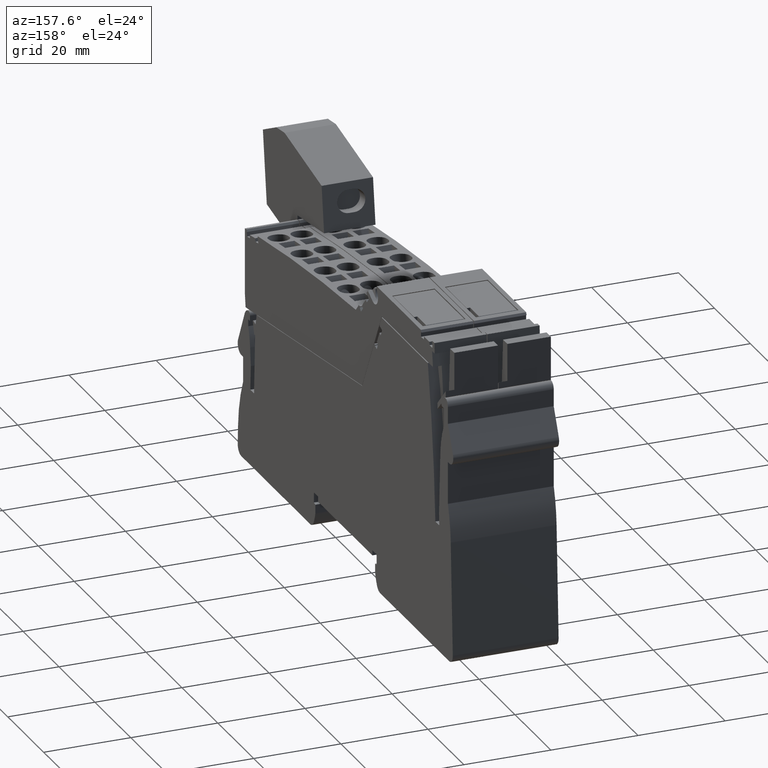
[diagram: clean part render]
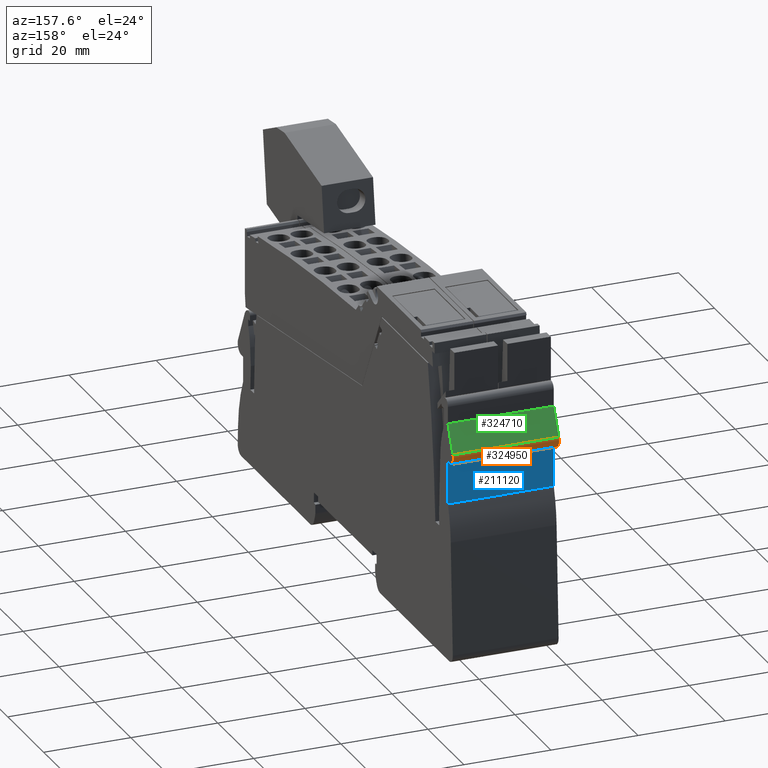
[diagram: same view with three faces highlighted in distinct colors, each labeled with its STEP entity id]
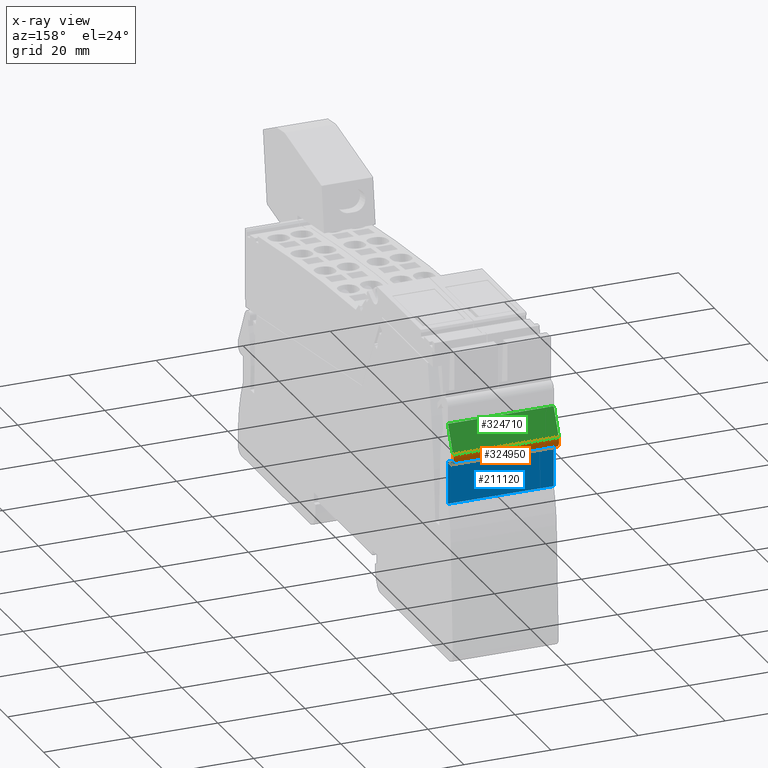
[diagram: x-ray of the same camera — body ghosted, the three highlighted faces saturated]
A machine part, auxiliary view with three faces highlighted in distinct colors.
The next image is the same camera in x-ray (body ghosted, the three faces saturated) — at least one of them is partly hidden behind the body in this view.
Their STEP definitions:

[orange] entity #324950 — the highlighted cylindrical surface (edge-blend (fillet) strip) has radius 2 mm, axis along (1, -0, 0).
#198460=CARTESIAN_POINT('',(296.541235782933,-14.1090415733122,12.15));
#198470=VERTEX_POINT('',#198460);
#198520=CARTESIAN_POINT('',(294.72862020886,-14.9542780967936,12.15));
#198530=DIRECTION('',(1.61619556307429E-58,1.53640057743941E-44,1.));
#198540=DIRECTION('',(1.,-1.05193631583234E-14,0.));
#198550=AXIS2_PLACEMENT_3D('',#198520,#198530,#198540);
#198560=CIRCLE('',#198550,2.);
#198570=CARTESIAN_POINT('',(294.72862020886,-16.9542780967936,12.15));
#198580=VERTEX_POINT('',#198570);
#198590=EDGE_CURVE('',#198580,#198470,#198560,.T.);
#204730=CARTESIAN_POINT('',(294.72862020886,-16.9542780967936,-12.15));
#204740=VERTEX_POINT('',#204730);
#204770=CARTESIAN_POINT('',(294.72862020886,-14.9542780967936,-12.15));
#204780=DIRECTION('',(1.61619556307429E-58,1.53640057743941E-44,1.));
#204790=DIRECTION('',(1.,-1.05193631583234E-14,0.));
#204800=AXIS2_PLACEMENT_3D('',#204770,#204780,#204790);
#204810=CIRCLE('',#204800,2.);
#204820=CARTESIAN_POINT('',(296.541235782933,-14.1090415733122,-12.15));
#204830=VERTEX_POINT('',#204820);
#204840=EDGE_CURVE('',#204740,#204830,#204810,.T.);
#324600=CARTESIAN_POINT('',(296.541235782933,-14.1090415733122,
-3014.28287690893));
#324610=DIRECTION('',(3.63230330722432E-59,3.45296882763315E-45,1.));
#324620=VECTOR('',#324610,1.);
#324630=LINE('',#324600,#324620);
#324640=EDGE_CURVE('',#204830,#198470,#324630,.T.);
#324790=CARTESIAN_POINT('',(294.72862020886,-14.9542780967942,
-8.32500000000002));
#324800=DIRECTION('',(3.63230330722432E-59,3.45296882763315E-45,1.));
#324810=DIRECTION('',(1.,-2.10387263166467E-14,3.63230330722432E-59));
#324820=AXIS2_PLACEMENT_3D('',#324790,#324800,#324810);
#324830=CYLINDRICAL_SURFACE('',#324820,2.);
#324840=ORIENTED_EDGE('',*,*,#204840,.T.);
#324850=CARTESIAN_POINT('',(294.72862020886,-16.9542780967936,
3.82499999999997));
#324860=DIRECTION('',(1.61619556307429E-58,1.53640057743941E-44,1.));
#324870=VECTOR('',#324860,1.);
#324880=LINE('',#324850,#324870);
#324890=EDGE_CURVE('',#204740,#198580,#324880,.T.);
#324900=ORIENTED_EDGE('',*,*,#324890,.F.);
#324910=ORIENTED_EDGE('',*,*,#198590,.F.);
#324920=ORIENTED_EDGE('',*,*,#324640,.T.);
#324930=EDGE_LOOP('',(#324920,#324910,#324900,#324840));
#324940=FACE_OUTER_BOUND('',#324930,.T.);
#324950=ADVANCED_FACE('',(#324940),#324830,.T.);

[blue] entity #211120 — the highlighted planar face has unit normal (-0, -1, 0).
#198650=CARTESIAN_POINT('',(293.72862020886,-16.9542780967935,12.15));
#198660=VERTEX_POINT('',#198650);
#198690=CARTESIAN_POINT('',(293.72862020886,-9.22682681901923E-13,12.15)
);
#198700=DIRECTION('',(-1.05193631583234E-14,-1.,3.45296882763315E-45));
#198710=VECTOR('',#198700,1.);
#198720=LINE('',#198690,#198710);
#198730=CARTESIAN_POINT('',(293.72862020886,-26.6633289582241,12.15));
#198740=VERTEX_POINT('',#198730);
#198750=EDGE_CURVE('',#198660,#198740,#198720,.T.);
#204710=CARTESIAN_POINT('',(293.72862020886,-16.9542780967935,-12.15));
#204720=VERTEX_POINT('',#204710);
#210710=CARTESIAN_POINT('',(293.72862020886,-26.6633289582241,-12.15));
#210720=VERTEX_POINT('',#210710);
#210750=CARTESIAN_POINT('',(293.72862020886,-9.22682681901923E-13,-12.15
));
#210760=DIRECTION('',(1.05193631583234E-14,1.,-1.53640057743941E-44));
#210770=VECTOR('',#210760,1.);
#210780=LINE('',#210750,#210770);
#210790=EDGE_CURVE('',#210720,#204720,#210780,.T.);
#210910=CARTESIAN_POINT('',(293.72862020886,-26.6633289582241,-12.15));
#210920=DIRECTION('',(-1.,1.05193631583234E-14,3.53737464016668E-74));
#210930=DIRECTION('',(-1.05193631583234E-14,-1.,1.53640057743941E-44));
#210940=AXIS2_PLACEMENT_3D('',#210910,#210920,#210930);
#210950=PLANE('',#210940);
#210960=CARTESIAN_POINT('',(293.72862020886,-16.9542780967935,-36.45));
#210970=DIRECTION('',(1.61619556307429E-58,1.53640057743941E-44,1.));
#210980=VECTOR('',#210970,1.);
#210990=LINE('',#210960,#210980);
#211000=EDGE_CURVE('',#204720,#198660,#210990,.T.);
#211010=ORIENTED_EDGE('',*,*,#211000,.T.);
#211020=ORIENTED_EDGE('',*,*,#210790,.T.);
#211030=CARTESIAN_POINT('',(293.72862020886,-26.6633289582241,-12.15));
#211040=DIRECTION('',(1.61619556307429E-58,1.53640057743941E-44,1.));
#211050=VECTOR('',#211040,1.);
#211060=LINE('',#211030,#211050);
#211070=EDGE_CURVE('',#210720,#198740,#211060,.T.);
#211080=ORIENTED_EDGE('',*,*,#211070,.F.);
#211090=ORIENTED_EDGE('',*,*,#198750,.T.);
#211100=EDGE_LOOP('',(#211090,#211080,#211020,#211010));
#211110=FACE_OUTER_BOUND('',#211100,.T.);
#211120=ADVANCED_FACE('',(#211110),#210950,.F.);

[green] entity #324710 — the highlighted planar face has unit normal (-0, 0.9063, 0.4226).
#198420=CARTESIAN_POINT('',(289.962081648071,-8.83061094931154E-13,12.15
));
#198430=DIRECTION('',(-0.42261826174069,0.906307787036654,
-3.12945253687874E-45));
#198440=VECTOR('',#198430,1.);
#198450=LINE('',#198420,#198440);
#198460=CARTESIAN_POINT('',(296.541235782933,-14.1090415733122,12.15));
#198470=VERTEX_POINT('',#198460);
#198480=CARTESIAN_POINT('',(293.72862020886,-8.07736800997913,12.15));
#198490=VERTEX_POINT('',#198480);
#198500=EDGE_CURVE('',#198470,#198490,#198450,.T.);
#204820=CARTESIAN_POINT('',(296.541235782933,-14.1090415733122,-12.15));
#204830=VERTEX_POINT('',#204820);
#204860=CARTESIAN_POINT('',(289.962081648071,-8.83061094931154E-13,
-12.15));
#204870=DIRECTION('',(0.42261826174069,-0.906307787036654,
3.12945253687874E-45));
#204880=VECTOR('',#204870,1.);
#204890=LINE('',#204860,#204880);
#204900=CARTESIAN_POINT('',(293.72862020886,-8.0773680099791,-12.15));
#204910=VERTEX_POINT('',#204900);
#204920=EDGE_CURVE('',#204910,#204830,#204890,.T.);
#211570=CARTESIAN_POINT('',(293.72862020886,-8.07736800997913,-36.45));
#211580=DIRECTION('',(1.61619556307429E-58,1.53640057743941E-44,1.));
#211590=VECTOR('',#211580,1.);
#211600=LINE('',#211570,#211590);
#211610=EDGE_CURVE('',#204910,#198490,#211600,.T.);
#324550=CARTESIAN_POINT('',(292.888138854276,-6.27494992851495,
-8.32500000000002));
#324560=DIRECTION('',(0.906307787036654,0.42261826174069,
-6.4931094137485E-45));
#324570=DIRECTION('',(0.42261826174069,-0.906307787036654,
1.39245180734094E-44));
#324580=AXIS2_PLACEMENT_3D('',#324550,#324560,#324570);
#324590=PLANE('',#324580);
#324600=CARTESIAN_POINT('',(296.541235782933,-14.1090415733122,
-3014.28287690893));
#324610=DIRECTION('',(3.63230330722432E-59,3.45296882763315E-45,1.));
#324620=VECTOR('',#324610,1.);
#324630=LINE('',#324600,#324620);
#324640=EDGE_CURVE('',#204830,#198470,#324630,.T.);
#324650=ORIENTED_EDGE('',*,*,#324640,.F.);
#324660=ORIENTED_EDGE('',*,*,#198500,.F.);
#324670=ORIENTED_EDGE('',*,*,#211610,.T.);
#324680=ORIENTED_EDGE('',*,*,#204920,.F.);
#324690=EDGE_LOOP('',(#324680,#324670,#324660,#324650));
#324700=FACE_OUTER_BOUND('',#324690,.T.);
#324710=ADVANCED_FACE('',(#324700),#324590,.T.);